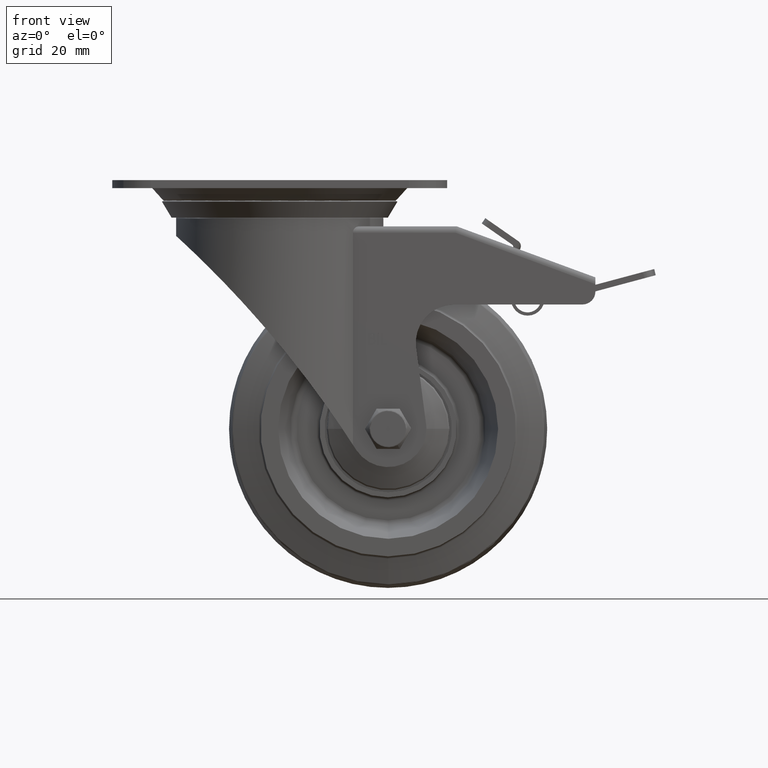
[diagram: clean part render]
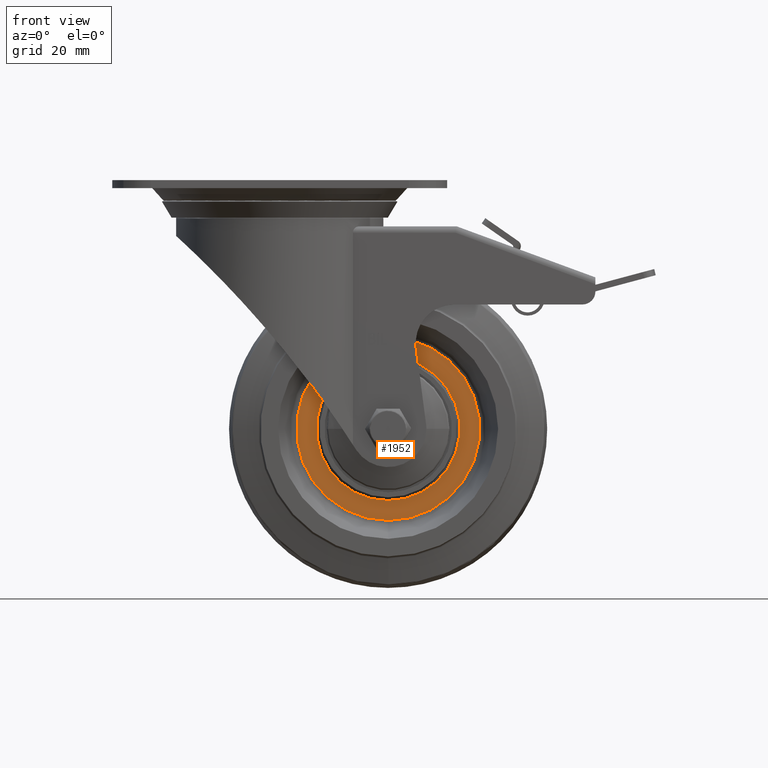
[diagram: same view with one face highlighted and labeled with its STEP entity id]
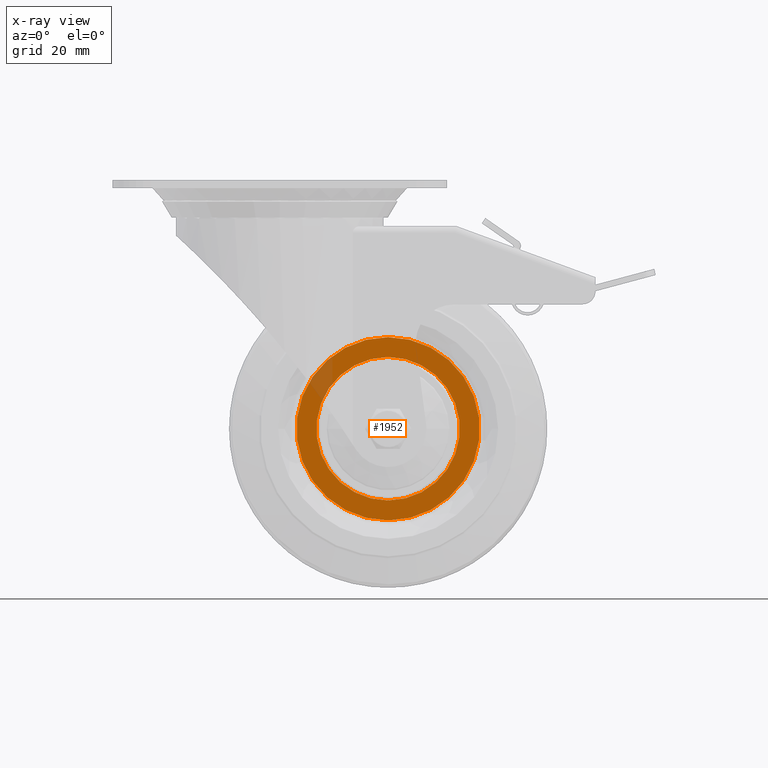
[diagram: x-ray of the same camera — body ghosted, the highlighted face saturated]
A machine part, front view. The second image highlights one B-rep face of the part: STEP entity #1952.
The next image is the same camera in x-ray: the body ghosted, the highlighted face saturated — about 5% of this face is hidden behind the body in this view.
In plain terms, the highlighted planar face has unit normal (-0, -1, 0).
Its self-contained STEP definition (entity closure, byte-faithful):
#1952=ADVANCED_FACE('38:5429',(#3633,#3634),#3635,.T.);
#3633=FACE_OUTER_BOUND('',#6539,.T.);
#3634=FACE_BOUND('',#6540,.T.);
#3635=PLANE('',#6541);
#6539=EDGE_LOOP('',(#16630,#16631));
#6540=EDGE_LOOP('',(#16632,#16633));
#6541=AXIS2_PLACEMENT_3D('',#16634,#16635,#16636);
#16630=ORIENTED_EDGE('',*,*,#24172,.F.);
#16631=ORIENTED_EDGE('',*,*,#24151,.F.);
#16632=ORIENTED_EDGE('',*,*,#24161,.F.);
#16633=ORIENTED_EDGE('',*,*,#24169,.F.);
#16634=CARTESIAN_POINT('',(0.0,-0.003,0.025875));
#16635=DIRECTION('',(-0.0,-1.0,-2.9738116731031E-16));
#16636=DIRECTION('',(-0.0,-2.9738116731031E-16,1.0));
#24151=EDGE_CURVE('38:12789',#27722,#27719,#27724,.T.);
#24161=EDGE_CURVE('38:13328',#27741,#27743,#27744,.T.);
#24169=EDGE_CURVE('38:13328',#27743,#27741,#27754,.T.);
#24172=EDGE_CURVE('38:12789',#27719,#27722,#27757,.T.);
#27719=VERTEX_POINT('',#33808);
#27722=VERTEX_POINT('',#33811);
#27724=CIRCLE('',#33813,0.0287379384229775);
#27741=VERTEX_POINT('',#33834);
#27743=VERTEX_POINT('',#33836);
#27744=CIRCLE('',#33837,0.0225);
#27754=CIRCLE('',#33847,0.0225);
#27757=CIRCLE('',#33850,0.0287379384229775);
#33808=CARTESIAN_POINT('',(7.03876486075862E-18,-0.003,0.0287379384229775));
#33811=CARTESIAN_POINT('',(-3.51938243037931E-18,-0.00299999999999998,-0.0287379384229775));
#33813=AXIS2_PLACEMENT_3D('',#42826,#42827,#42828);
#33834=CARTESIAN_POINT('',(0.0,-0.003,0.0225));
#33836=CARTESIAN_POINT('',(-2.75545529808154E-18,-0.00299999999999998,-0.0225));
#33837=AXIS2_PLACEMENT_3D('',#42848,#42849,#42850);
#33847=AXIS2_PLACEMENT_3D('',#42872,#42873,#42874);
#33850=AXIS2_PLACEMENT_3D('',#42881,#42882,#42883);
#42826=CARTESIAN_POINT('',(0.0,-0.00299999999999999,7.27155647874617E-19));
#42827=DIRECTION('',(0.0,1.0,2.9738116731031E-16));
#42828=DIRECTION('',(-1.22464679914735E-16,2.9738116731031E-16,-1.0));
#42848=CARTESIAN_POINT('',(0.0,-0.00299999999999999,2.97381167310312E-19));
#42849=DIRECTION('',(0.0,-1.0,-2.9738116731031E-16));
#42850=DIRECTION('',(-1.22464679914735E-16,2.9738116731031E-16,-1.0));
#42872=CARTESIAN_POINT('',(0.0,-0.00299999999999999,2.97381167310312E-19));
#42873=DIRECTION('',(0.0,-1.0,-2.9738116731031E-16));
#42874=DIRECTION('',(-1.22464679914735E-16,2.9738116731031E-16,-1.0));
#42881=CARTESIAN_POINT('',(0.0,-0.00299999999999999,7.27155647874617E-19));
#42882=DIRECTION('',(0.0,1.0,2.9738116731031E-16));
#42883=DIRECTION('',(-1.22464679914735E-16,2.9738116731031E-16,-1.0));